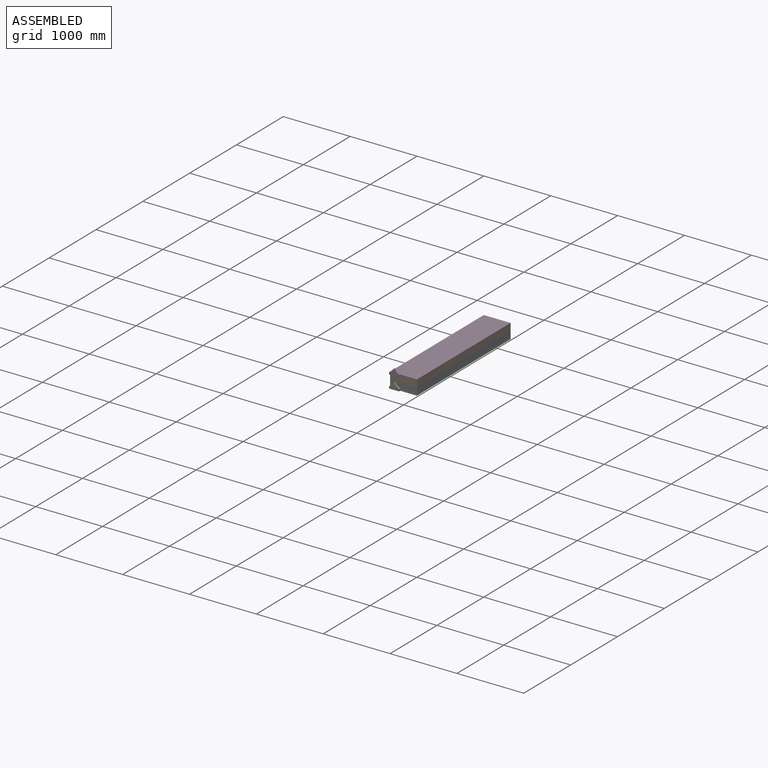
[diagram: assembled view]
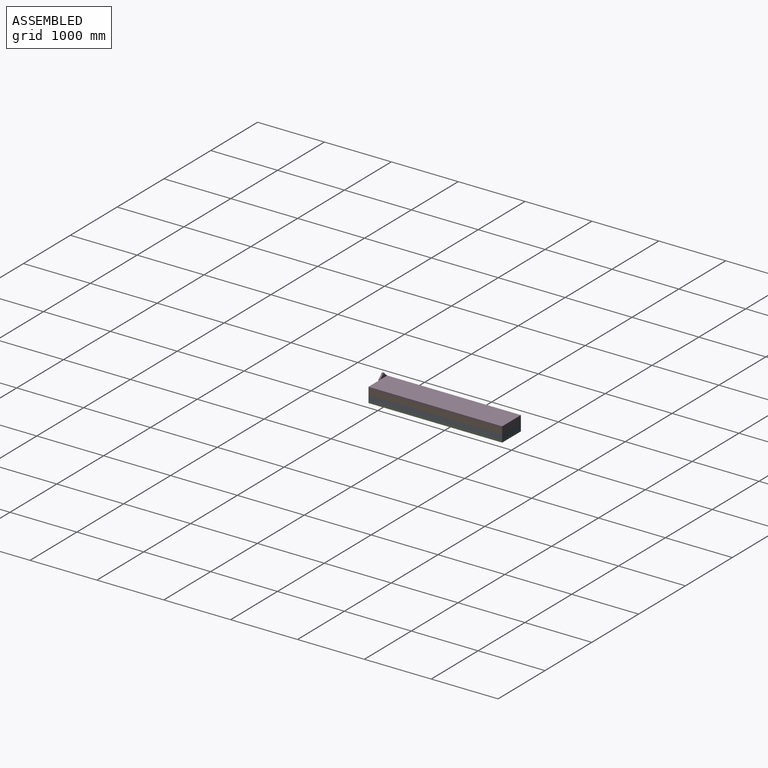
[diagram: assembled view, second angle]
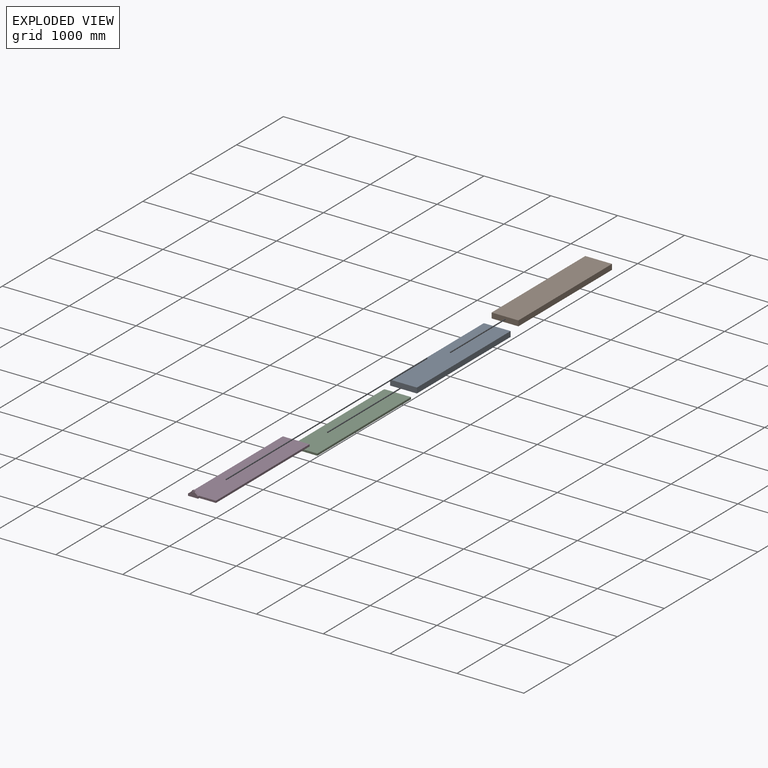
[diagram: exploded view]
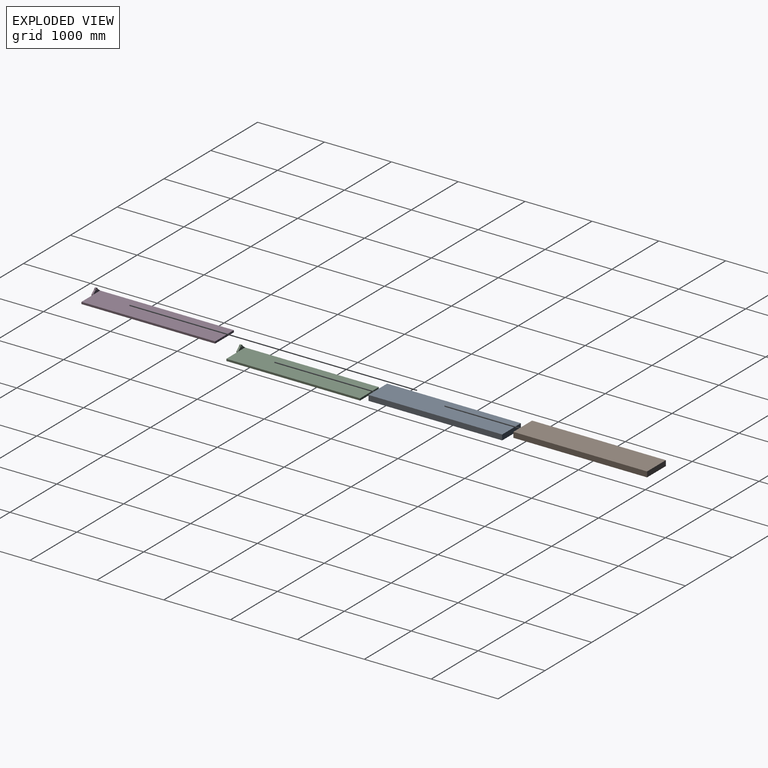
[diagram: exploded view, second angle]
ASSEMBLY  parts=4 mates=2
PART A: 6 faces, bbox 400x2000x80 mm
  f0: plane 2000x80mm, normal (1,0,0), area 160000mm2, adj f1,f3,f4,f5
  f1: plane 400x80mm, normal (0,1,0), area 32000mm2, adj f0,f2,f4,f5
  f2: plane 2000x80mm, normal (-1,0,0), area 160000mm2, adj f1,f3,f4,f5
  f3: plane 400x80mm, normal (0,-1,0), area 32000mm2, adj f0,f2,f4,f5
  f4: plane 2000x400mm, normal (0,0,1), area 800000mm2, adj f0,f1,f2,f3
  f5: plane 2000x400mm, normal (0,0,-1), area 800000mm2, adj f0,f1,f2,f3
PART B: same geometry as A
PART C: 15 faces, bbox 400x2025x95 mm
  f0: plane 250x30mm, normal (0,-1,0), area 7342.9mm2, adj f1,f4,f5,f6,f7,f10
  f1: plane 2000x30mm, normal (1,0,0), area 60000mm2, adj f0,f2,f4,f5
  f2: plane 400x30mm, normal (0,1,0), area 11842.9mm2, adj f1,f3,f4,f5,f6,f7
  f3: plane 2025x30mm, normal (-1,0,0), area 60750mm2, adj f2,f4,f5,f9,f14
  f4: plane 2000x400mm, normal (0,0,1), area 800000mm2, adj f0,f1,f2,f3,f8
  f5: plane 2025x400mm, normal (0,0,-1), area 803750mm2, adj f0,f1,f2,f3,f10,f14
  f6: cylinder r=5mm len=2000mm, axis (0,-1,0), area 62831.9mm2, adj f0,f2
  f7: cylinder r=5mm len=2000mm, axis (0,-1,0), area 62831.9mm2, adj f0,f2
  f8: plane 150x65mm, normal (0,1,0), area 4726.6mm2, adj f4,f9,f11,f12,f13
  f9: plane 55x45mm, normal (-0.63,0,0.77), area 1776.6mm2, adj f3,f8,f12,f14
  f10: plane 30x25mm, normal (1,0,0), area 750mm2, adj f0,f5,f11,f14
  f11: plane 55x45mm, normal (0.63,0,0.77), area 1776.6mm2, adj f8,f10,f12,f14
  f12: cylinder r=20mm len=40mm, axis (0,1,0), area 1570.8mm2, adj f8,f9,f11,f14
  f13: cylinder r=7.5mm len=25mm, axis (0,1,0), area 1178.1mm2, adj f8,f14
  f14: plane 150x95mm, normal (0,-1,0), area 9226.6mm2, adj f3,f5,f9,f10,f11,f12,f13
PART D: same geometry as C
PLACE A t=(0,0,30)mm
PLACE B t=(0,0,110)mm
PLACE C at identity fixed
PLACE D t=(0,0,190)mm
MATE revolute B.f3 <-> A.f3  axis (0,-1,0) through (-200,-1000,110)mm
MATE fastened A.f5 <-> C.f4  axis (0,0,-1) through (-200,-1000,30)mm
